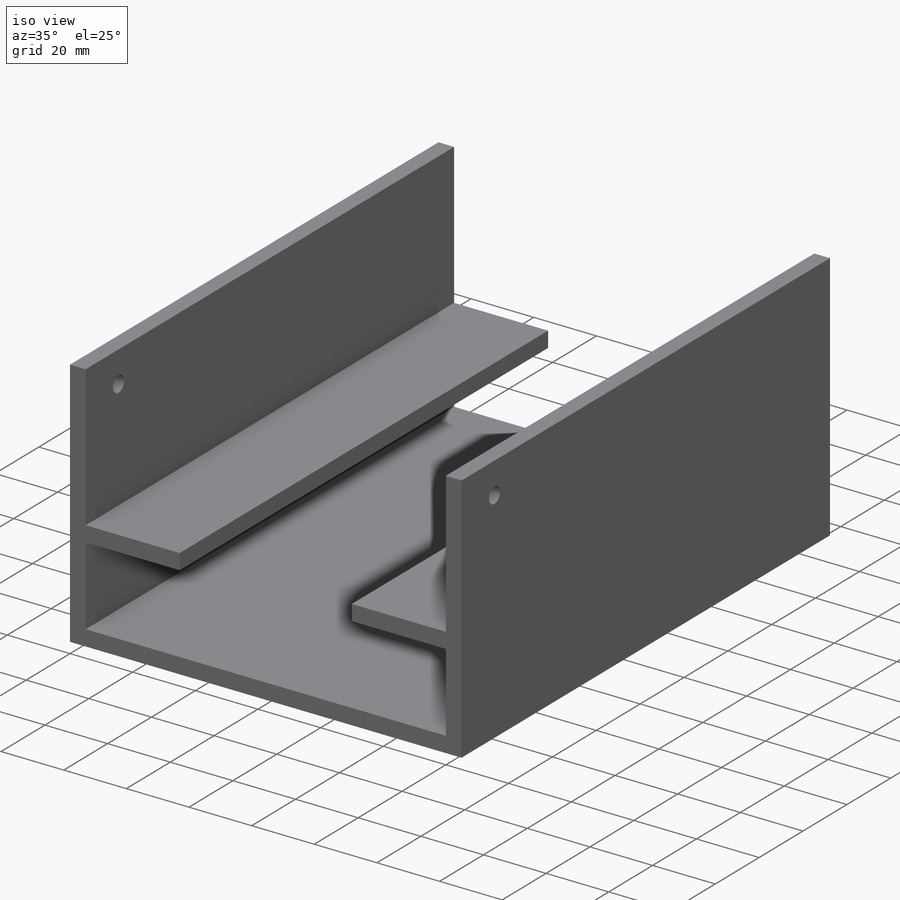
[diagram: iso view]
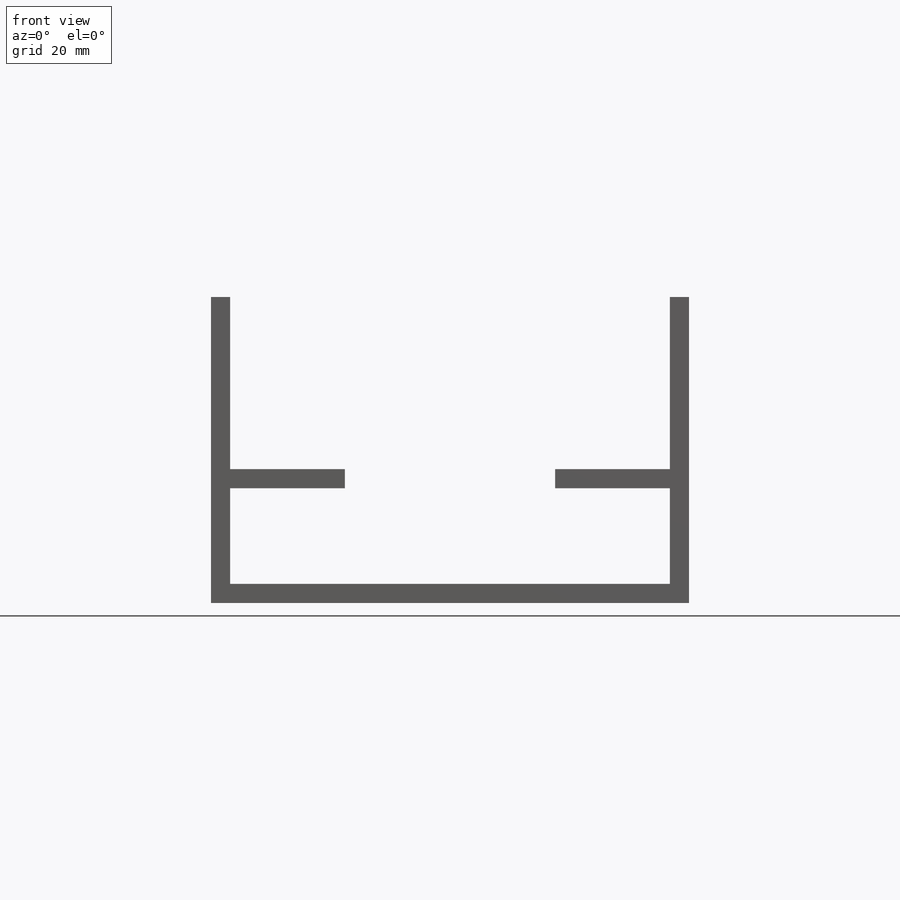
[diagram: front view]
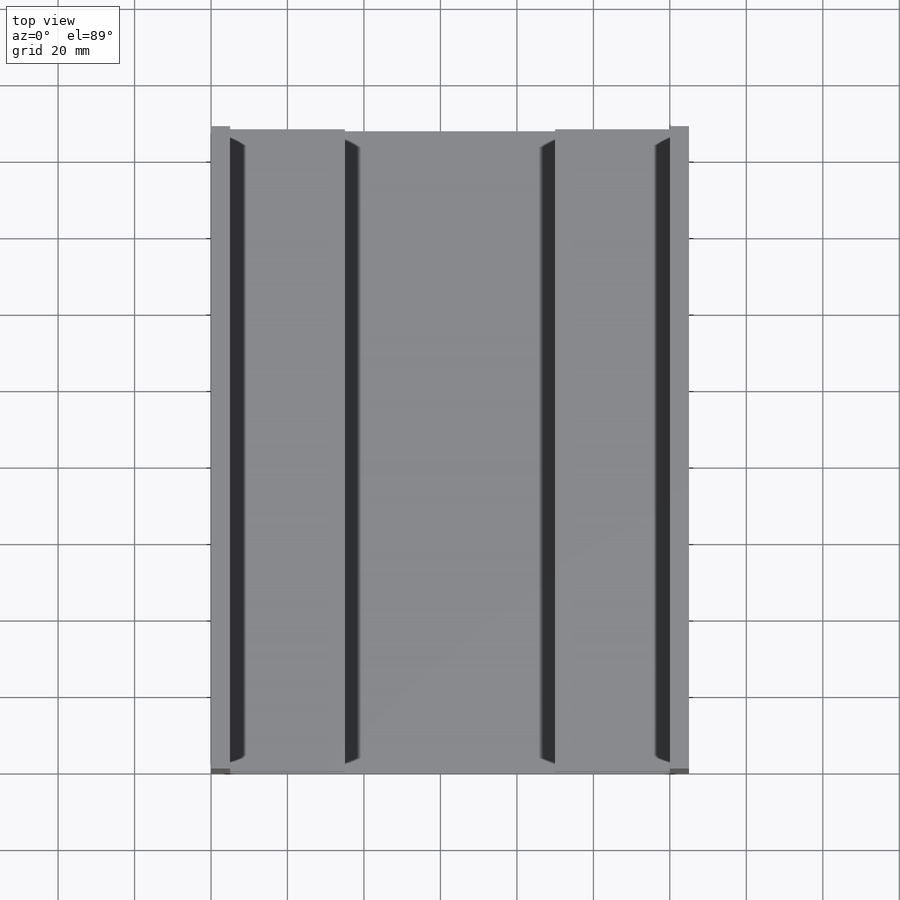
[diagram: top view]
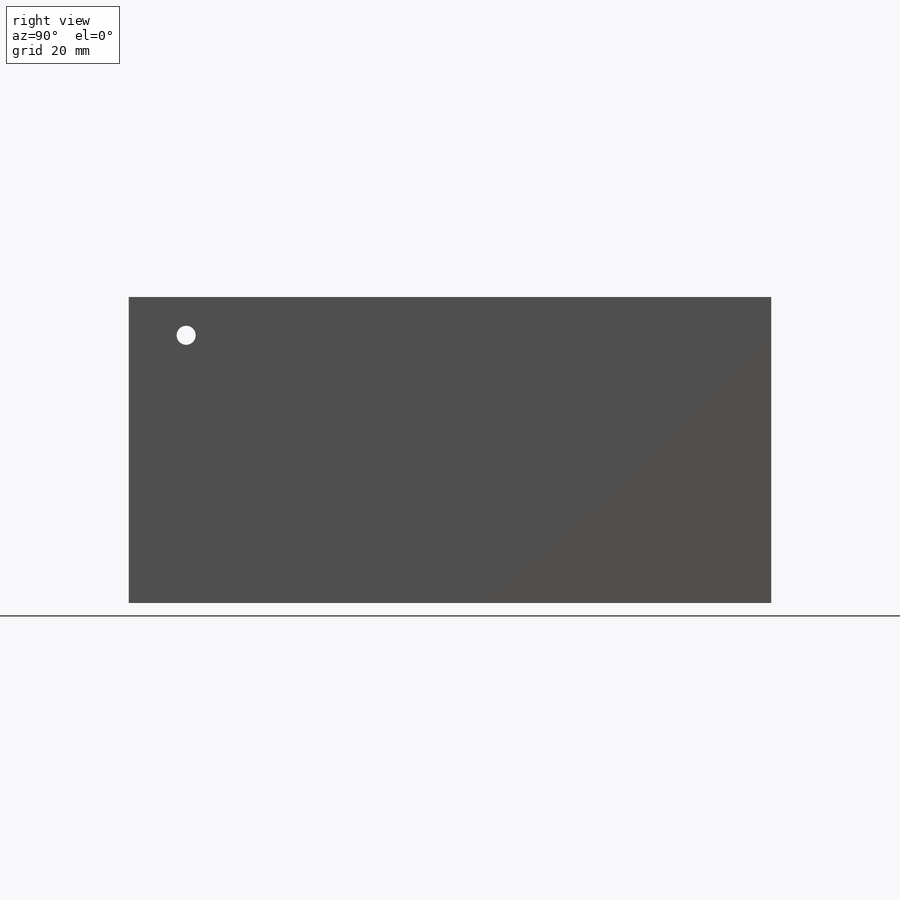
[diagram: right view]
SOLIDWORKS PART (.sldprt)
format: sldprt  version: not decoded by parser v0  size: 207,360 bytes
history: native  units: mm
features: sketch x6, extrude x5, plane x3, material x1, cut_extrude x1 (+10 scaffold rows collapsed)
feature tree (26):
  scaffold x10  (default folders/planes/origin — collapsed)
  material  "Material <sin especificar>"
  plane  "Alzado"
  plane  "Planta"
  plane  "Vista lateral"
  sketch  "Croquis1"  dims[D1=125.0mm D2=168.0mm]
  extrude  "Saliente-Extruir1"  Depth=5mm
  sketch  "Croquis2"  dims[D1=5.0mm D2=5.0mm]
  extrude  "Saliente-Extruir2"  Depth=75mm
  sketch  "Croquis3"  dims[D1=5.0mm]
  extrude  "Saliente-Extruir3"  Depth=75mm
  sketch  "Croquis4"  dims[D1=5.0mm D2=45.0mm]
  extrude  "Saliente-Extruir4"  Depth=30mm
  sketch  "Croquis5"  dims[D1=5.0mm D2=45.0mm]
  extrude  "Saliente-Extruir5"  Depth=30mm
  sketch  "Croquis6"  dims[c1.D2=5.0mm c1.D1=35.0mm c2.D2=~32.616863mm c2.D3=15.0mm]
  cut_extrude  "Cortar-Extruir1"  Depth=135mm
decode coverage: 12 of 12 modeling features carry decoded parameters
note: ~ marks probable driven/reference dimensions
note: suppression state not decoded; provenance and decode notes live in map.json
